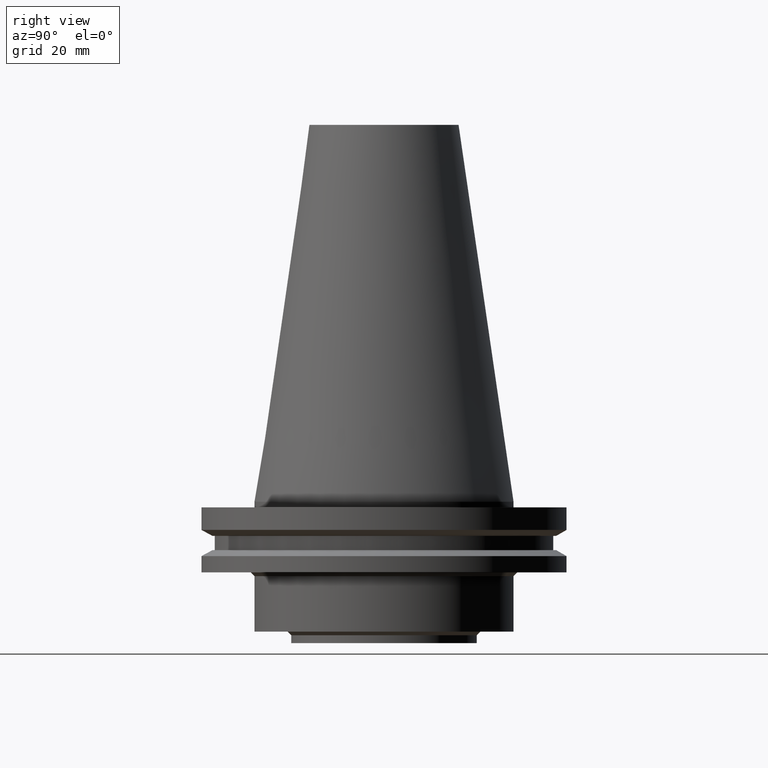
[diagram: clean part render]
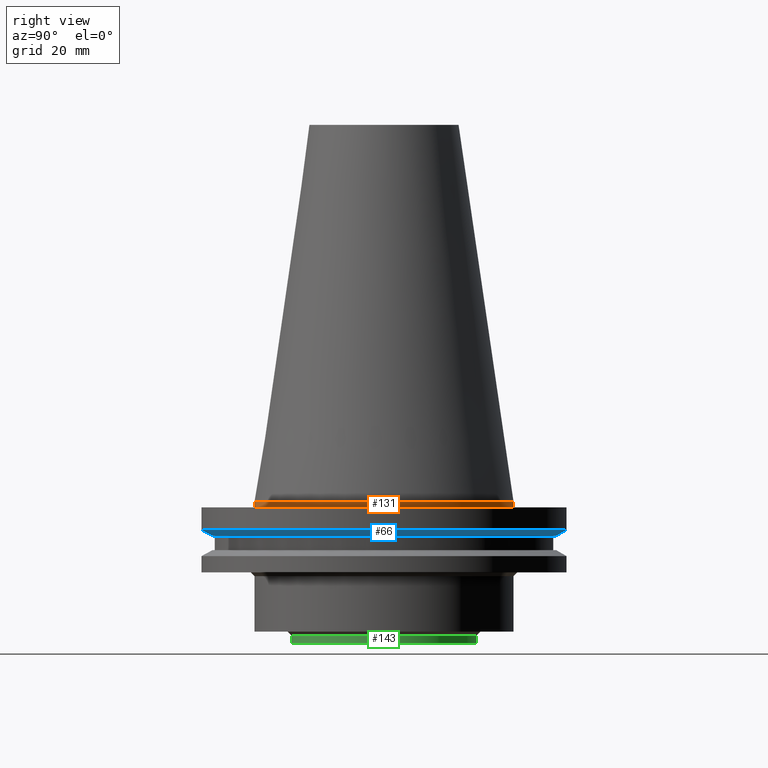
[diagram: same view with three faces highlighted in distinct colors, each labeled with its STEP entity id]
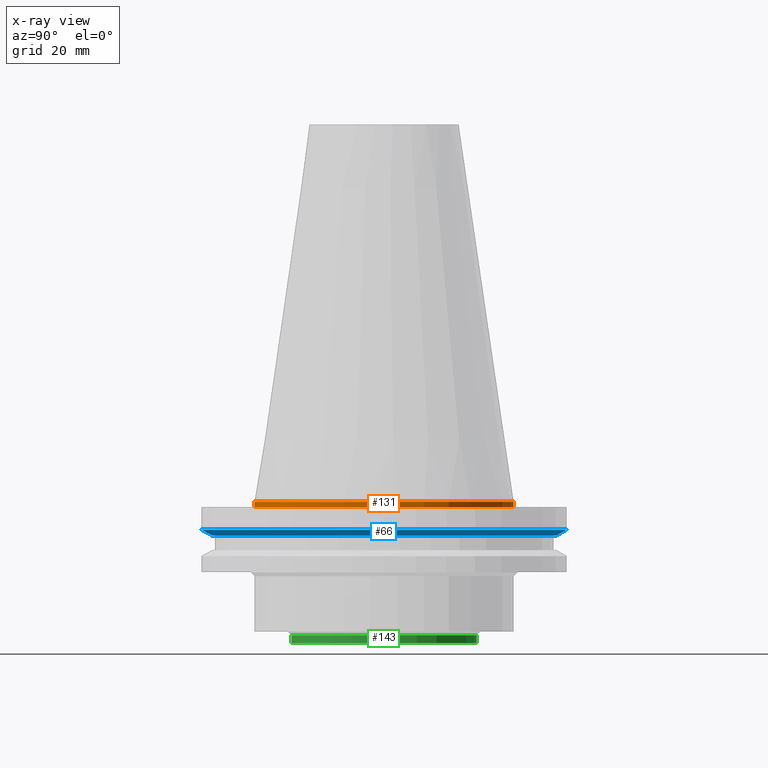
[diagram: x-ray of the same camera — body ghosted, the three highlighted faces saturated]
A machine part, right view with three faces highlighted in distinct colors.
The next image is the same camera in x-ray (body ghosted, the three faces saturated) — at least one of them is partly hidden behind the body in this view.
Their STEP definitions:

[orange] entity #131 — the highlighted cylindrical surface (bore or boss wall) has radius 34.925 mm, axis along (0, 0, -1).
#79=EDGE_CURVE('Unnamed[1]',#197,#197,#198,.T.);
#113=EDGE_CURVE('Unnamed[1]',#251,#251,#252,.T.);
#131=ADVANCED_FACE('Unnamed[1]',(#276,#277),#278,.T.);
#197=VERTEX_POINT('',#354);
#198=CIRCLE('',#355,34.925);
#251=VERTEX_POINT('',#422);
#252=CIRCLE('',#423,34.925);
#276=FACE_BOUND('',#453,.T.);
#277=FACE_BOUND('',#454,.T.);
#278=CYLINDRICAL_SURFACE('',#455,34.925);
#354=CARTESIAN_POINT('',(9.18485099360511E-017,34.925,-1.5));
#355=AXIS2_PLACEMENT_3D('',#525,#526,#527);
#422=CARTESIAN_POINT('',(4.82986938111671E-029,34.925,-7.9153078510529E-013));
#423=AXIS2_PLACEMENT_3D('',#585,#586,#587);
#453=EDGE_LOOP('',(#610));
#454=EDGE_LOOP('',(#611));
#455=AXIS2_PLACEMENT_3D('',#612,#613,#614);
#525=CARTESIAN_POINT('',(9.18485099360524E-017,-1.54297945824561E-014,-1.50000000000001));
#526=DIRECTION('',(6.12323399573677E-017,5.07982991083333E-016,-1.0));
#527=DIRECTION('',(-3.59321399333442E-032,1.0,5.07982991083333E-016));
#585=CARTESIAN_POINT('',(4.95993415593426E-029,-1.61917690690807E-014,-8.10018718766514E-013));
#586=DIRECTION('',(6.12323399573677E-017,5.07982991083333E-016,-1.0));
#587=DIRECTION('',(-3.59321399333442E-032,1.0,5.07982991083333E-016));
#610=ORIENTED_EDGE('',*,*,#79,.F.);
#611=ORIENTED_EDGE('',*,*,#113,.T.);
#612=CARTESIAN_POINT('',(4.5924254968051E-017,-1.58107818257684E-014,-0.750000000000412));
#613=DIRECTION('',(6.12323399573677E-017,5.07982991083333E-016,-1.0));
#614=DIRECTION('',(-3.59321399333442E-032,1.0,5.07982991083333E-016));

[blue] entity #66 — the highlighted conical surface has half-angle 60 deg.
#66=ADVANCED_FACE('Unnamed[1]',(#176,#177),#178,.T.);
#68=EDGE_CURVE('Unnamed[1]',#180,#180,#181,.T.);
#93=EDGE_CURVE('Unnamed[1]',#219,#219,#220,.T.);
#176=FACE_BOUND('',#327,.T.);
#177=FACE_BOUND('',#328,.T.);
#178=CONICAL_SURFACE('',#329,47.822529226926,1.04719755119663);
#180=VERTEX_POINT('',#332);
#181=CIRCLE('',#333,49.2125000000001);
#219=VERTEX_POINT('',#382);
#220=CIRCLE('',#383,46.432558453852);
#327=EDGE_LOOP('',(#502));
#328=EDGE_LOOP('',(#503));
#329=AXIS2_PLACEMENT_3D('',#504,#505,#506);
#332=CARTESIAN_POINT('',(4.65059621976208E-016,49.2125,-7.59500000000002));
#333=AXIS2_PLACEMENT_3D('',#507,#508,#509);
#382=CARTESIAN_POINT('',(5.63337527607778E-016,46.432558453852,-9.19999999999993));
#383=AXIS2_PLACEMENT_3D('',#549,#550,#551);
#502=ORIENTED_EDGE('',*,*,#93,.F.);
#503=ORIENTED_EDGE('',*,*,#68,.T.);
#504=CARTESIAN_POINT('',(5.14198574791995E-016,-1.19259819014588E-014,-8.3975));
#505=DIRECTION('',(-6.12323399573677E-017,-5.07982991083333E-016,1.0));
#506=DIRECTION('',(-3.59321399333442E-032,1.0,5.07982991083333E-016));
#507=CARTESIAN_POINT('',(4.6505962197621E-016,-1.23336382518032E-014,-7.59500000000005));
#508=DIRECTION('',(6.12323399573676E-017,5.07982991083333E-016,-1.0));
#509=DIRECTION('',(-3.59321399333442E-032,1.0,5.07982991083333E-016));
#549=CARTESIAN_POINT('',(5.63337527607779E-016,-1.15183255511145E-014,-9.19999999999995));
#550=DIRECTION('',(6.12323399573677E-017,5.07982991083333E-016,-1.0));
#551=DIRECTION('',(-3.59321399333442E-032,1.0,5.07982991083333E-016));

[green] entity #143 — the highlighted cylindrical surface (bore or boss wall) has radius 25 mm, axis along (0, 0, -1).
#91=EDGE_CURVE('Unnamed[1]',#216,#216,#217,.T.);
#120=EDGE_CURVE('Unnamed[1]',#262,#262,#263,.T.);
#143=ADVANCED_FACE('Unnamed[1]',(#296,#297),#298,.T.);
#216=VERTEX_POINT('',#378);
#217=CIRCLE('',#379,25.0);
#262=VERTEX_POINT('',#436);
#263=CIRCLE('',#437,25.0);
#296=FACE_BOUND('',#477,.T.);
#297=FACE_BOUND('',#478,.T.);
#298=CYLINDRICAL_SURFACE('',#479,25.0);
#378=CARTESIAN_POINT('',(2.33295215237571E-015,25.0,-38.1));
#379=AXIS2_PLACEMENT_3D('',#546,#547,#548);
#436=CARTESIAN_POINT('',(2.20436423846523E-015,25.0,-35.9999999999999));
#437=AXIS2_PLACEMENT_3D('',#597,#598,#599);
#477=EDGE_LOOP('',(#634));
#478=EDGE_LOOP('',(#635));
#479=AXIS2_PLACEMENT_3D('',#636,#637,#638);
#546=CARTESIAN_POINT('',(2.33295215237571E-015,3.1623828911939E-015,-38.1));
#547=DIRECTION('',(6.12323399573677E-017,5.07982991083333E-016,-1.0));
#548=DIRECTION('',(-3.59321399333442E-032,1.0,5.07982991083333E-016));
#597=CARTESIAN_POINT('',(2.20436423846523E-015,2.09561860991883E-015,-35.9999999999999));
#598=DIRECTION('',(6.12323399573677E-017,5.07982991083333E-016,-1.0));
#599=DIRECTION('',(-3.59321399333442E-032,1.0,5.07982991083333E-016));
#634=ORIENTED_EDGE('',*,*,#91,.F.);
#635=ORIENTED_EDGE('',*,*,#120,.T.);
#636=CARTESIAN_POINT('',(2.26865819542047E-015,2.62900075055636E-015,-37.05));
#637=DIRECTION('',(6.12323399573677E-017,5.07982991083333E-016,-1.0));
#638=DIRECTION('',(-3.59321399333442E-032,1.0,5.07982991083333E-016));